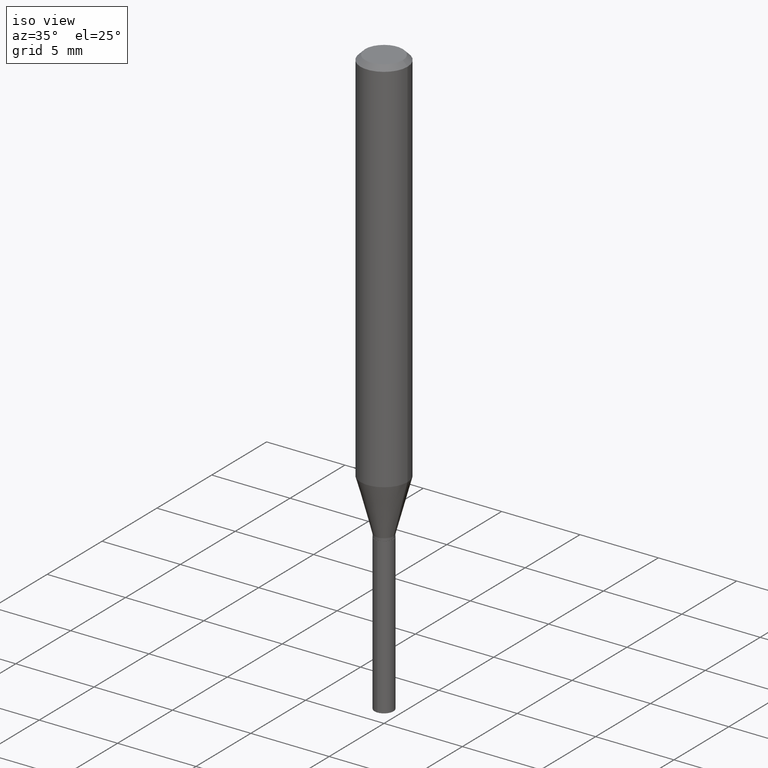
[diagram: clean part render]
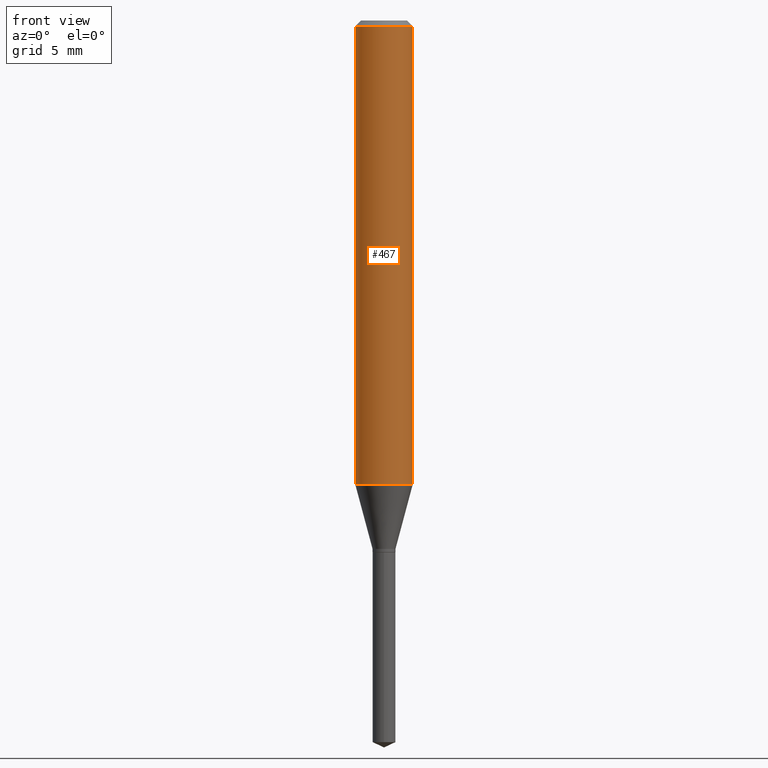
[diagram: tour spotlight — one face highlighted and labeled with its STEP entity id]
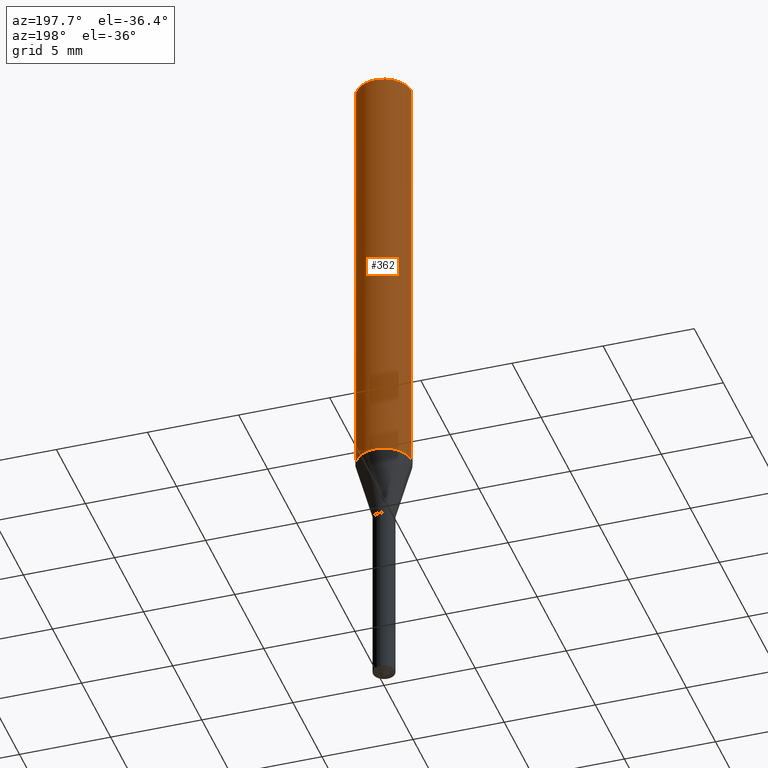
[diagram: tour spotlight — one face highlighted and labeled with its STEP entity id]
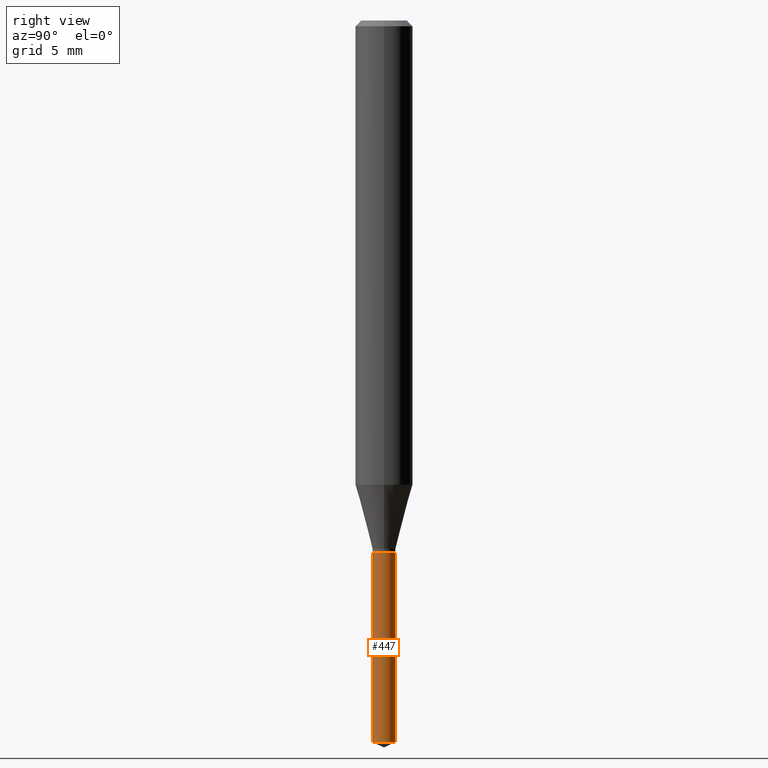
[diagram: tour spotlight — one face highlighted and labeled with its STEP entity id]
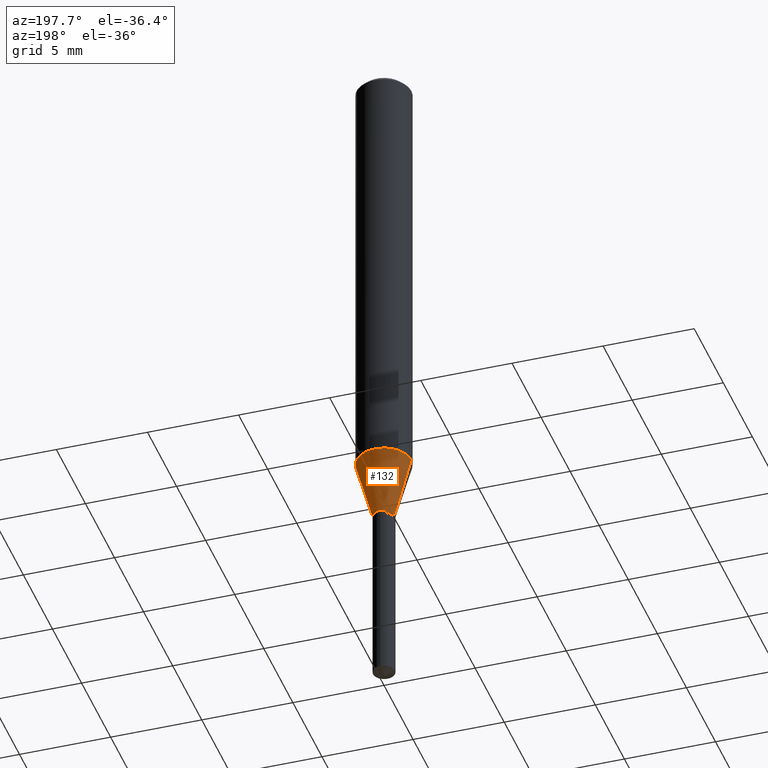
[diagram: tour spotlight — one face highlighted and labeled with its STEP entity id]
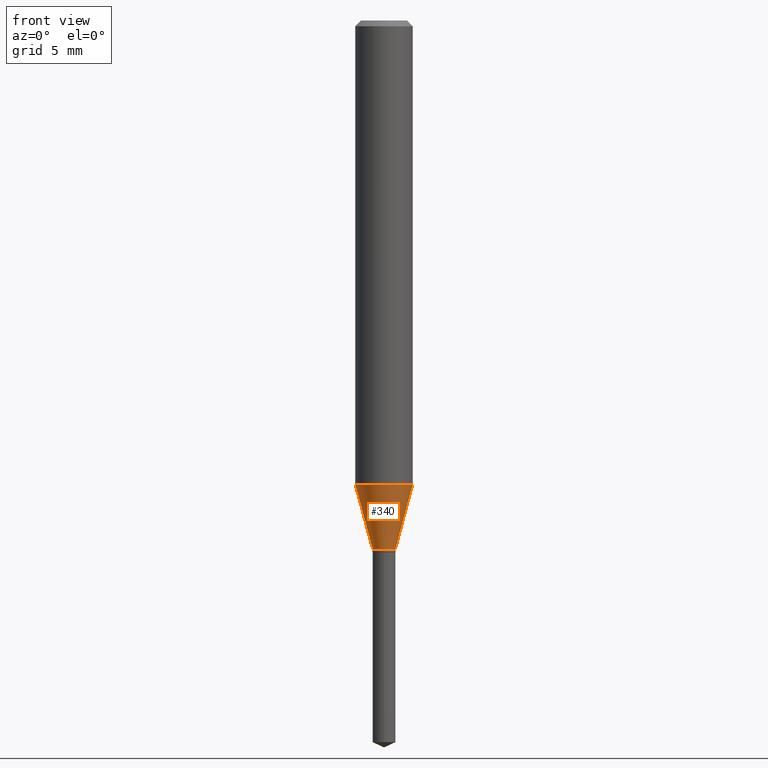
[diagram: tour spotlight — one face highlighted and labeled with its STEP entity id]
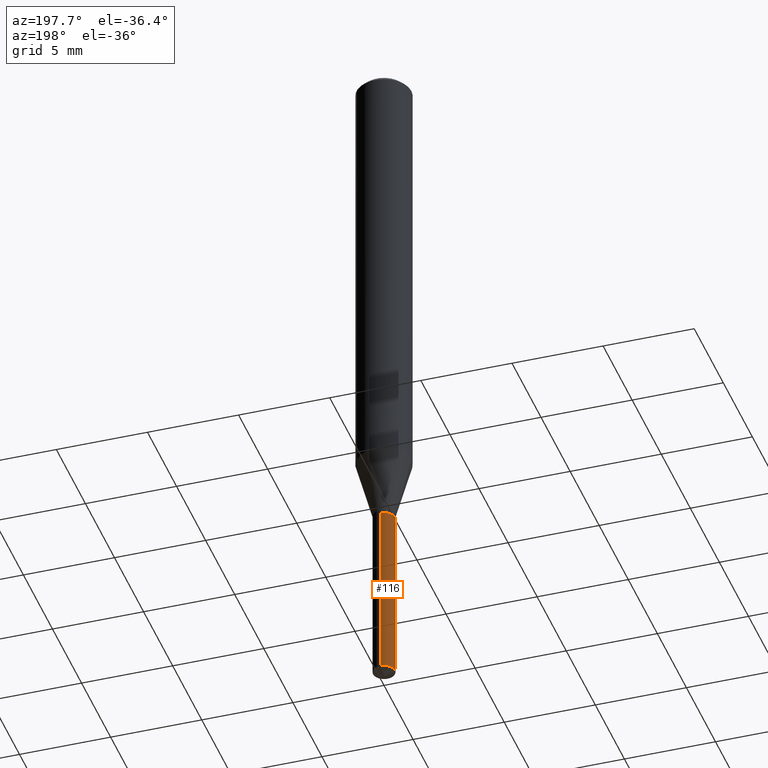
[diagram: tour spotlight — one face highlighted and labeled with its STEP entity id]
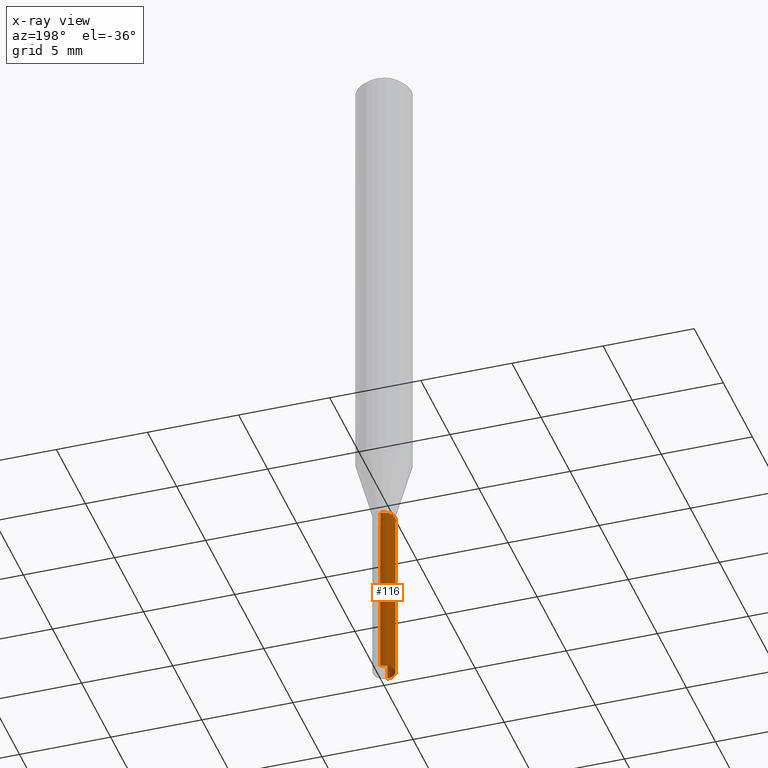
[diagram: x-ray of the same camera — body ghosted, this tour face saturated]
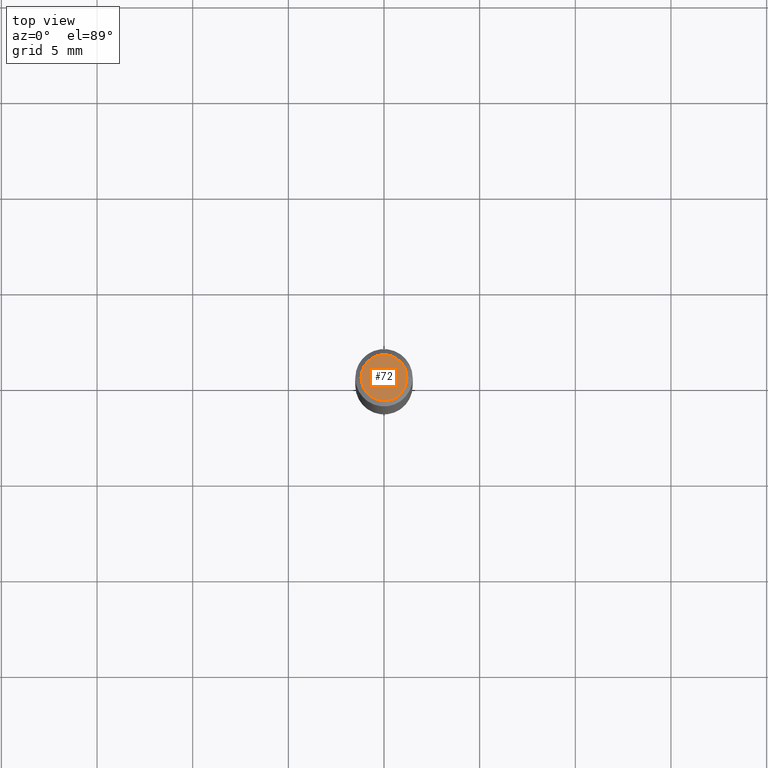
[diagram: tour spotlight — one face highlighted and labeled with its STEP entity id]
A machine part: a face-by-face anatomy tour. The part has 17 B-rep faces; the first image is the clean iso view, then the 7 largest visible faces are spotlighted one at a time (largest first), each with its STEP entity span.

Face 1 — front view, entity #467. In plain terms, the highlighted cylindrical surface (edge-blend (fillet) strip) has radius 1.4999 mm, axis along (-0, 0, 1).
Definition (entity closure, byte-faithful):
#2 = DIRECTION ( 'NONE',  ( 1.000000000000000000, -6.982962677686266711E-15, 4.876176775795935793E-29 ) ) ;
#23 = CARTESIAN_POINT ( 'NONE',  ( -0.05904999999999999832, -1.268396528345520737E-15, -0.01181000000000007738 ) ) ;
#30 = ORIENTED_EDGE ( 'NONE', *, *, #358, .T. ) ;
#44 = EDGE_CURVE ( 'NONE', #256, #261, #271, .T. ) ;
#69 = CARTESIAN_POINT ( 'NONE',  ( 0.000000000000000000, 0.000000000000000000, 0.000000000000000000 ) ) ;
#76 = DIRECTION ( 'NONE',  ( -2.445468806185136597E-29, 3.491481338843145583E-15, 1.000000000000000000 ) ) ;
#84 = CARTESIAN_POINT ( 'NONE',  ( 0.05905000000000013016, -3.747053579129358835E-15, -0.9550987988716831412 ) ) ;
#89 = AXIS2_PLACEMENT_3D ( 'NONE', #69, #76, #2 ) ;
#101 = LINE ( 'NONE', #257, #286 ) ;
#111 = CARTESIAN_POINT ( 'NONE',  ( -0.05905000000000006077, 4.195754854663395916E-16, -2.904631170795524694E-30 ) ) ;
#143 = VERTEX_POINT ( 'NONE', #84 ) ;
#159 = AXIS2_PLACEMENT_3D ( 'NONE', #260, #372, #445 ) ;
#176 = DIRECTION ( 'NONE',  ( -2.445468806185136597E-29, 3.491481338843145583E-15, 1.000000000000000000 ) ) ;
#177 = CIRCLE ( 'NONE', #159, 0.05905000000000011628 ) ;
#192 = FACE_OUTER_BOUND ( 'NONE', #402, .T. ) ;
#245 = CIRCLE ( 'NONE', #321, 0.05904999999999999832 ) ;
#253 = VECTOR ( 'NONE', #453, 39.37007874015748143 ) ;
#256 = VERTEX_POINT ( 'NONE', #316 ) ;
#257 = CARTESIAN_POINT ( 'NONE',  ( 0.05905000000000006077, -4.123439461173744764E-16, 2.879382386107503023E-30 ) ) ;
#260 = CARTESIAN_POINT ( 'NONE',  ( 2.335664319465593009E-29, -3.334709633011984309E-15, -0.9550987988716831412 ) ) ;
#261 = VERTEX_POINT ( 'NONE', #23 ) ;
#268 = CYLINDRICAL_SURFACE ( 'NONE', #89, 0.05905000000000006077 ) ;
#271 = LINE ( 'NONE', #111, #253 ) ;
#286 = VECTOR ( 'NONE', #482, 39.37007874015748143 ) ;
#316 = CARTESIAN_POINT ( 'NONE',  ( -0.05905000000000013016, -2.915134147545644027E-15, -0.9550987988716831412 ) ) ;
#321 = AXIS2_PLACEMENT_3D ( 'NONE', #333, #176, #434 ) ;
#328 = EDGE_CURVE ( 'NONE', #256, #143, #177, .T. ) ;
#333 = CARTESIAN_POINT ( 'NONE',  ( 2.888098660104665518E-31, -4.123439461173782112E-17, -0.01181000000000007738 ) ) ;
#334 = EDGE_CURVE ( 'NONE', #261, #444, #245, .T. ) ;
#349 = ORIENTED_EDGE ( 'NONE', *, *, #328, .T. ) ;
#358 = EDGE_CURVE ( 'NONE', #143, #444, #101, .T. ) ;
#367 = ORIENTED_EDGE ( 'NONE', *, *, #334, .F. ) ;
#372 = DIRECTION ( 'NONE',  ( -2.445468806185136597E-29, 3.491481338843145583E-15, 1.000000000000000000 ) ) ;
#402 = EDGE_LOOP ( 'NONE', ( #442, #349, #30, #367 ) ) ;
#434 = DIRECTION ( 'NONE',  ( 1.000000000000000000, -6.982962677686266711E-15, 0.000000000000000000 ) ) ;
#442 = ORIENTED_EDGE ( 'NONE', *, *, #44, .F. ) ;
#444 = VERTEX_POINT ( 'NONE', #457 ) ;
#445 = DIRECTION ( 'NONE',  ( 1.000000000000000000, -6.982962677686266711E-15, 0.000000000000000000 ) ) ;
#453 = DIRECTION ( 'NONE',  ( -2.445468806185136877E-29, 3.491481338843145188E-15, 1.000000000000000000 ) ) ;
#457 = CARTESIAN_POINT ( 'NONE',  ( 0.05904999999999999832, -4.535783407291118600E-16, -0.01181000000000007738 ) ) ;
#467 = ADVANCED_FACE ( 'NONE', ( #192 ), #268, .T. ) ;
#482 = DIRECTION ( 'NONE',  ( -2.445468806185136877E-29, 3.491481338843145188E-15, 1.000000000000000000 ) ) ;

Face 2 — auxiliary view, entity #362. In plain terms, the highlighted cylindrical surface (edge-blend (fillet) strip) has radius 1.4999 mm, axis along (-0, 0, 1).
Definition (entity closure, byte-faithful):
#14 = CIRCLE ( 'NONE', #194, 0.05904999999999999832 ) ;
#23 = CARTESIAN_POINT ( 'NONE',  ( -0.05904999999999999832, -1.268396528345520737E-15, -0.01181000000000007738 ) ) ;
#27 = FACE_OUTER_BOUND ( 'NONE', #420, .T. ) ;
#32 = DIRECTION ( 'NONE',  ( -2.445468806185136597E-29, 3.491481338843145583E-15, 1.000000000000000000 ) ) ;
#44 = EDGE_CURVE ( 'NONE', #256, #261, #271, .T. ) ;
#84 = CARTESIAN_POINT ( 'NONE',  ( 0.05905000000000013016, -3.747053579129358835E-15, -0.9550987988716831412 ) ) ;
#88 = DIRECTION ( 'NONE',  ( -2.445468806185136597E-29, 3.491481338843145583E-15, 1.000000000000000000 ) ) ;
#91 = CARTESIAN_POINT ( 'NONE',  ( 2.888098660104665518E-31, -4.123439461173782112E-17, -0.01181000000000007738 ) ) ;
#101 = LINE ( 'NONE', #257, #286 ) ;
#111 = CARTESIAN_POINT ( 'NONE',  ( -0.05905000000000006077, 4.195754854663395916E-16, -2.904631170795524694E-30 ) ) ;
#140 = DIRECTION ( 'NONE',  ( 1.000000000000000000, -6.982962677686266711E-15, 4.876176775795935793E-29 ) ) ;
#143 = VERTEX_POINT ( 'NONE', #84 ) ;
#165 = AXIS2_PLACEMENT_3D ( 'NONE', #403, #167, #140 ) ;
#167 = DIRECTION ( 'NONE',  ( -2.445468806185136597E-29, 3.491481338843145583E-15, 1.000000000000000000 ) ) ;
#194 = AXIS2_PLACEMENT_3D ( 'NONE', #91, #88, #351 ) ;
#221 = EDGE_CURVE ( 'NONE', #444, #261, #14, .T. ) ;
#222 = CYLINDRICAL_SURFACE ( 'NONE', #165, 0.05905000000000006077 ) ;
#227 = ORIENTED_EDGE ( 'NONE', *, *, #358, .F. ) ;
#236 = CIRCLE ( 'NONE', #417, 0.05905000000000011628 ) ;
#253 = VECTOR ( 'NONE', #453, 39.37007874015748143 ) ;
#256 = VERTEX_POINT ( 'NONE', #316 ) ;
#257 = CARTESIAN_POINT ( 'NONE',  ( 0.05905000000000006077, -4.123439461173744764E-16, 2.879382386107503023E-30 ) ) ;
#261 = VERTEX_POINT ( 'NONE', #23 ) ;
#263 = DIRECTION ( 'NONE',  ( 1.000000000000000000, -6.982962677686266711E-15, 0.000000000000000000 ) ) ;
#271 = LINE ( 'NONE', #111, #253 ) ;
#286 = VECTOR ( 'NONE', #482, 39.37007874015748143 ) ;
#292 = ORIENTED_EDGE ( 'NONE', *, *, #221, .F. ) ;
#316 = CARTESIAN_POINT ( 'NONE',  ( -0.05905000000000013016, -2.915134147545644027E-15, -0.9550987988716831412 ) ) ;
#351 = DIRECTION ( 'NONE',  ( 1.000000000000000000, -6.982962677686266711E-15, 0.000000000000000000 ) ) ;
#358 = EDGE_CURVE ( 'NONE', #143, #444, #101, .T. ) ;
#362 = ADVANCED_FACE ( 'NONE', ( #27 ), #222, .T. ) ;
#370 = CARTESIAN_POINT ( 'NONE',  ( 2.335664319465593009E-29, -3.334709633011984309E-15, -0.9550987988716831412 ) ) ;
#382 = EDGE_CURVE ( 'NONE', #143, #256, #236, .T. ) ;
#403 = CARTESIAN_POINT ( 'NONE',  ( 0.000000000000000000, 0.000000000000000000, 0.000000000000000000 ) ) ;
#417 = AXIS2_PLACEMENT_3D ( 'NONE', #370, #32, #263 ) ;
#418 = ORIENTED_EDGE ( 'NONE', *, *, #44, .T. ) ;
#420 = EDGE_LOOP ( 'NONE', ( #446, #418, #292, #227 ) ) ;
#444 = VERTEX_POINT ( 'NONE', #457 ) ;
#446 = ORIENTED_EDGE ( 'NONE', *, *, #382, .T. ) ;
#453 = DIRECTION ( 'NONE',  ( -2.445468806185136877E-29, 3.491481338843145188E-15, 1.000000000000000000 ) ) ;
#457 = CARTESIAN_POINT ( 'NONE',  ( 0.05904999999999999832, -4.535783407291118600E-16, -0.01181000000000007738 ) ) ;
#482 = DIRECTION ( 'NONE',  ( -2.445468806185136877E-29, 3.491481338843145188E-15, 1.000000000000000000 ) ) ;

Face 3 — right view, entity #447. In plain terms, the highlighted cylindrical surface (edge-blend (fillet) strip) has radius 0.5994 mm, axis along (-0, 0, 1).
Definition (entity closure, byte-faithful):
#12 = CARTESIAN_POINT ( 'NONE',  ( 1.676880856394200262E-16, 0.02359999999999617959, -1.094500000000000028 ) ) ;
#24 = CIRCLE ( 'NONE', #353, 0.02360000000000000292 ) ;
#29 = EDGE_LOOP ( 'NONE', ( #409, #406, #33, #259 ) ) ;
#33 = ORIENTED_EDGE ( 'NONE', *, *, #169, .F. ) ;
#34 = FACE_OUTER_BOUND ( 'NONE', #29, .T. ) ;
#39 = DIRECTION ( 'NONE',  ( -2.445470214571802396E-29, 3.491479321953280158E-15, 1.000000000000000000 ) ) ;
#49 = VERTEX_POINT ( 'NONE', #12 ) ;
#51 = LINE ( 'NONE', #354, #166 ) ;
#75 = DIRECTION ( 'NONE',  ( -6.982962677686265133E-15, -1.000000000000000000, 0.000000000000000000 ) ) ;
#93 = EDGE_CURVE ( 'NONE', #329, #488, #24, .T. ) ;
#125 = CARTESIAN_POINT ( 'NONE',  ( -1.647979191933691307E-16, -0.02360000000000382278, -1.094499999999999806 ) ) ;
#127 = CIRCLE ( 'NONE', #471, 0.02360000000000000292 ) ;
#129 = EDGE_CURVE ( 'NONE', #329, #180, #51, .T. ) ;
#130 = CARTESIAN_POINT ( 'NONE',  ( -1.647979191933595904E-16, -0.02360000000000518627, -1.485095139267541997 ) ) ;
#139 = VECTOR ( 'NONE', #39, 39.37007874015748143 ) ;
#160 = AXIS2_PLACEMENT_3D ( 'NONE', #276, #232, #413 ) ;
#166 = VECTOR ( 'NONE', #352, 39.37007874015748143 ) ;
#169 = EDGE_CURVE ( 'NONE', #180, #49, #127, .T. ) ;
#180 = VERTEX_POINT ( 'NONE', #125 ) ;
#232 = DIRECTION ( 'NONE',  ( -2.445470214571802116E-29, 3.491479321953280158E-15, 1.000000000000000000 ) ) ;
#259 = ORIENTED_EDGE ( 'NONE', *, *, #129, .F. ) ;
#273 = DIRECTION ( 'NONE',  ( -2.445470214571802116E-29, 3.491479321953280158E-15, 1.000000000000000000 ) ) ;
#276 = CARTESIAN_POINT ( 'NONE',  ( 2.676565608369631794E-29, -3.821426325363822773E-15, -1.094499999999999806 ) ) ;
#284 = DIRECTION ( 'NONE',  ( -6.982962677686265133E-15, -1.000000000000000000, 5.787813545898861862E-15 ) ) ;
#308 = CARTESIAN_POINT ( 'NONE',  ( 3.631754387404930906E-29, -5.185181177371907688E-15, -1.485095139267541997 ) ) ;
#313 = DIRECTION ( 'NONE',  ( -2.445470214571802116E-29, 3.491479321953280158E-15, 1.000000000000000000 ) ) ;
#329 = VERTEX_POINT ( 'NONE', #130 ) ;
#352 = DIRECTION ( 'NONE',  ( -2.445470214571802396E-29, 3.491479321953280158E-15, 1.000000000000000000 ) ) ;
#353 = AXIS2_PLACEMENT_3D ( 'NONE', #308, #273, #75 ) ;
#354 = CARTESIAN_POINT ( 'NONE',  ( -1.647979191933691307E-16, -0.02360000000000382278, -1.094499999999999806 ) ) ;
#392 = CARTESIAN_POINT ( 'NONE',  ( 2.676565608369631794E-29, -3.821426325363822773E-15, -1.094499999999999806 ) ) ;
#397 = EDGE_CURVE ( 'NONE', #488, #49, #454, .T. ) ;
#406 = ORIENTED_EDGE ( 'NONE', *, *, #397, .T. ) ;
#409 = ORIENTED_EDGE ( 'NONE', *, *, #93, .T. ) ;
#411 = CYLINDRICAL_SURFACE ( 'NONE', #160, 0.02360000000000000292 ) ;
#413 = DIRECTION ( 'NONE',  ( -6.982962677686265133E-15, -1.000000000000000000, 5.787813545898861862E-15 ) ) ;
#421 = CARTESIAN_POINT ( 'NONE',  ( 1.676880856394199276E-16, 0.02359999999999481610, -1.485095139267541997 ) ) ;
#447 = ADVANCED_FACE ( 'NONE', ( #34 ), #411, .T. ) ;
#451 = CARTESIAN_POINT ( 'NONE',  ( 1.676880856394103626E-16, 0.02359999999999617959, -1.094500000000000028 ) ) ;
#454 = LINE ( 'NONE', #451, #139 ) ;
#471 = AXIS2_PLACEMENT_3D ( 'NONE', #392, #313, #284 ) ;
#488 = VERTEX_POINT ( 'NONE', #421 ) ;

Face 4 — auxiliary view, entity #132. In plain terms, the highlighted conical surface has half-angle 15 deg.
Definition (entity closure, byte-faithful):
#11 = DIRECTION ( 'NONE',  ( -2.445468806185136597E-29, 3.491481338843145583E-15, 1.000000000000000000 ) ) ;
#17 = DIRECTION ( 'NONE',  ( -2.445468806185136597E-29, 3.491481338843145583E-15, 1.000000000000000000 ) ) ;
#32 = DIRECTION ( 'NONE',  ( -2.445468806185136597E-29, 3.491481338843145583E-15, 1.000000000000000000 ) ) ;
#37 = ORIENTED_EDGE ( 'NONE', *, *, #103, .F. ) ;
#43 = CARTESIAN_POINT ( 'NONE',  ( 0.02360000000000000292, -3.961434727051432093E-15, -1.087399999999999922 ) ) ;
#52 = VECTOR ( 'NONE', #364, 39.37007874015747433 ) ;
#65 = VECTOR ( 'NONE', #191, 39.37007874015747433 ) ;
#73 = CIRCLE ( 'NONE', #274, 0.02360000000000000292 ) ;
#82 = EDGE_CURVE ( 'NONE', #363, #404, #73, .T. ) ;
#84 = CARTESIAN_POINT ( 'NONE',  ( 0.05905000000000013016, -3.747053579129358835E-15, -0.9550987988716831412 ) ) ;
#94 = ORIENTED_EDGE ( 'NONE', *, *, #82, .T. ) ;
#103 = EDGE_CURVE ( 'NONE', #363, #143, #381, .T. ) ;
#132 = ADVANCED_FACE ( 'NONE', ( #357 ), #438, .T. ) ;
#143 = VERTEX_POINT ( 'NONE', #84 ) ;
#149 = ORIENTED_EDGE ( 'NONE', *, *, #382, .F. ) ;
#191 = DIRECTION ( 'NONE',  ( 0.2588190451025213501, 1.565188264969621968E-15, 0.9659258262890682012 ) ) ;
#212 = EDGE_LOOP ( 'NONE', ( #94, #296, #149, #37 ) ) ;
#217 = CARTESIAN_POINT ( 'NONE',  ( 0.02360000000000000292, -3.961434727051432093E-15, -1.087399999999999922 ) ) ;
#231 = DIRECTION ( 'NONE',  ( 1.000000000000000000, -6.982962677686258033E-15, 0.000000000000000000 ) ) ;
#236 = CIRCLE ( 'NONE', #417, 0.05905000000000011628 ) ;
#256 = VERTEX_POINT ( 'NONE', #316 ) ;
#263 = DIRECTION ( 'NONE',  ( 1.000000000000000000, -6.982962677686266711E-15, 0.000000000000000000 ) ) ;
#272 = CARTESIAN_POINT ( 'NONE',  ( -0.02360000000000000292, -3.640470610636835238E-15, -1.087399999999999922 ) ) ;
#274 = AXIS2_PLACEMENT_3D ( 'NONE', #345, #11, #231 ) ;
#288 = DIRECTION ( 'NONE',  ( 1.000000000000000000, -6.982962677686258033E-15, 0.000000000000000000 ) ) ;
#289 = CARTESIAN_POINT ( 'NONE',  ( -0.02360000000000000292, -3.628948722218652525E-15, -1.087399999999999922 ) ) ;
#296 = ORIENTED_EDGE ( 'NONE', *, *, #311, .T. ) ;
#311 = EDGE_CURVE ( 'NONE', #404, #256, #405, .T. ) ;
#316 = CARTESIAN_POINT ( 'NONE',  ( -0.05905000000000013016, -2.915134147545644027E-15, -0.9550987988716831412 ) ) ;
#330 = AXIS2_PLACEMENT_3D ( 'NONE', #424, #17, #288 ) ;
#345 = CARTESIAN_POINT ( 'NONE',  ( 2.659202779845717713E-29, -3.796636807858036634E-15, -1.087399999999999922 ) ) ;
#357 = FACE_OUTER_BOUND ( 'NONE', #212, .T. ) ;
#363 = VERTEX_POINT ( 'NONE', #217 ) ;
#364 = DIRECTION ( 'NONE',  ( -0.2588190451025213501, 5.211531920934551042E-15, 0.9659258262890682012 ) ) ;
#370 = CARTESIAN_POINT ( 'NONE',  ( 2.335664319465593009E-29, -3.334709633011984309E-15, -0.9550987988716831412 ) ) ;
#381 = LINE ( 'NONE', #43, #65 ) ;
#382 = EDGE_CURVE ( 'NONE', #143, #256, #236, .T. ) ;
#404 = VERTEX_POINT ( 'NONE', #272 ) ;
#405 = LINE ( 'NONE', #289, #52 ) ;
#417 = AXIS2_PLACEMENT_3D ( 'NONE', #370, #32, #263 ) ;
#424 = CARTESIAN_POINT ( 'NONE',  ( 2.659202779845717713E-29, -3.796636807858036634E-15, -1.087399999999999922 ) ) ;
#438 = CONICAL_SURFACE ( 'NONE', #330, 0.02360000000000000292, 0.2617993877991500740 ) ;

Face 5 — front view, entity #340. In plain terms, the highlighted conical surface has half-angle 15 deg.
Definition (entity closure, byte-faithful):
#43 = CARTESIAN_POINT ( 'NONE',  ( 0.02360000000000000292, -3.961434727051432093E-15, -1.087399999999999922 ) ) ;
#52 = VECTOR ( 'NONE', #364, 39.37007874015747433 ) ;
#65 = VECTOR ( 'NONE', #191, 39.37007874015747433 ) ;
#81 = CIRCLE ( 'NONE', #152, 0.02360000000000000292 ) ;
#84 = CARTESIAN_POINT ( 'NONE',  ( 0.05905000000000013016, -3.747053579129358835E-15, -0.9550987988716831412 ) ) ;
#103 = EDGE_CURVE ( 'NONE', #363, #143, #381, .T. ) ;
#106 = FACE_OUTER_BOUND ( 'NONE', #414, .T. ) ;
#112 = ORIENTED_EDGE ( 'NONE', *, *, #103, .T. ) ;
#121 = CONICAL_SURFACE ( 'NONE', #456, 0.02360000000000000292, 0.2617993877991500740 ) ;
#134 = ORIENTED_EDGE ( 'NONE', *, *, #328, .F. ) ;
#143 = VERTEX_POINT ( 'NONE', #84 ) ;
#152 = AXIS2_PLACEMENT_3D ( 'NONE', #241, #428, #394 ) ;
#159 = AXIS2_PLACEMENT_3D ( 'NONE', #260, #372, #445 ) ;
#177 = CIRCLE ( 'NONE', #159, 0.05905000000000011628 ) ;
#183 = EDGE_CURVE ( 'NONE', #404, #363, #81, .T. ) ;
#191 = DIRECTION ( 'NONE',  ( 0.2588190451025213501, 1.565188264969621968E-15, 0.9659258262890682012 ) ) ;
#211 = ORIENTED_EDGE ( 'NONE', *, *, #311, .F. ) ;
#214 = CARTESIAN_POINT ( 'NONE',  ( 2.659202779845717713E-29, -3.796636807858036634E-15, -1.087399999999999922 ) ) ;
#217 = CARTESIAN_POINT ( 'NONE',  ( 0.02360000000000000292, -3.961434727051432093E-15, -1.087399999999999922 ) ) ;
#241 = CARTESIAN_POINT ( 'NONE',  ( 2.659202779845717713E-29, -3.796636807858036634E-15, -1.087399999999999922 ) ) ;
#250 = DIRECTION ( 'NONE',  ( -2.445468806185136597E-29, 3.491481338843145583E-15, 1.000000000000000000 ) ) ;
#256 = VERTEX_POINT ( 'NONE', #316 ) ;
#260 = CARTESIAN_POINT ( 'NONE',  ( 2.335664319465593009E-29, -3.334709633011984309E-15, -0.9550987988716831412 ) ) ;
#272 = CARTESIAN_POINT ( 'NONE',  ( -0.02360000000000000292, -3.640470610636835238E-15, -1.087399999999999922 ) ) ;
#275 = ORIENTED_EDGE ( 'NONE', *, *, #183, .T. ) ;
#289 = CARTESIAN_POINT ( 'NONE',  ( -0.02360000000000000292, -3.628948722218652525E-15, -1.087399999999999922 ) ) ;
#311 = EDGE_CURVE ( 'NONE', #404, #256, #405, .T. ) ;
#316 = CARTESIAN_POINT ( 'NONE',  ( -0.05905000000000013016, -2.915134147545644027E-15, -0.9550987988716831412 ) ) ;
#328 = EDGE_CURVE ( 'NONE', #256, #143, #177, .T. ) ;
#340 = ADVANCED_FACE ( 'NONE', ( #106 ), #121, .T. ) ;
#363 = VERTEX_POINT ( 'NONE', #217 ) ;
#364 = DIRECTION ( 'NONE',  ( -0.2588190451025213501, 5.211531920934551042E-15, 0.9659258262890682012 ) ) ;
#372 = DIRECTION ( 'NONE',  ( -2.445468806185136597E-29, 3.491481338843145583E-15, 1.000000000000000000 ) ) ;
#381 = LINE ( 'NONE', #43, #65 ) ;
#394 = DIRECTION ( 'NONE',  ( 1.000000000000000000, -6.982962677686258033E-15, 0.000000000000000000 ) ) ;
#398 = DIRECTION ( 'NONE',  ( 1.000000000000000000, -6.982962677686258033E-15, 0.000000000000000000 ) ) ;
#404 = VERTEX_POINT ( 'NONE', #272 ) ;
#405 = LINE ( 'NONE', #289, #52 ) ;
#414 = EDGE_LOOP ( 'NONE', ( #211, #275, #112, #134 ) ) ;
#428 = DIRECTION ( 'NONE',  ( -2.445468806185136597E-29, 3.491481338843145583E-15, 1.000000000000000000 ) ) ;
#445 = DIRECTION ( 'NONE',  ( 1.000000000000000000, -6.982962677686266711E-15, 0.000000000000000000 ) ) ;
#456 = AXIS2_PLACEMENT_3D ( 'NONE', #214, #250, #398 ) ;

Face 6 — auxiliary view, entity #116. An x-ray twin of the same camera follows (body ghosted, this face saturated) — the face is partly hidden behind the body. In plain terms, the highlighted cylindrical surface (edge-blend (fillet) strip) has radius 0.5994 mm, axis along (-0, 0, 1).
Definition (entity closure, byte-faithful):
#8 = CIRCLE ( 'NONE', #490, 0.02360000000000000292 ) ;
#12 = CARTESIAN_POINT ( 'NONE',  ( 1.676880856394200262E-16, 0.02359999999999617959, -1.094500000000000028 ) ) ;
#13 = DIRECTION ( 'NONE',  ( -6.982962677686265133E-15, -1.000000000000000000, 0.000000000000000000 ) ) ;
#39 = DIRECTION ( 'NONE',  ( -2.445470214571802396E-29, 3.491479321953280158E-15, 1.000000000000000000 ) ) ;
#49 = VERTEX_POINT ( 'NONE', #12 ) ;
#51 = LINE ( 'NONE', #354, #166 ) ;
#63 = DIRECTION ( 'NONE',  ( -2.445470214571802116E-29, 3.491479321953280158E-15, 1.000000000000000000 ) ) ;
#86 = DIRECTION ( 'NONE',  ( -2.445470214571802116E-29, 3.491479321953280158E-15, 1.000000000000000000 ) ) ;
#105 = ORIENTED_EDGE ( 'NONE', *, *, #297, .F. ) ;
#114 = CIRCLE ( 'NONE', #449, 0.02360000000000000292 ) ;
#116 = ADVANCED_FACE ( 'NONE', ( #196 ), #118, .T. ) ;
#118 = CYLINDRICAL_SURFACE ( 'NONE', #346, 0.02360000000000000292 ) ;
#125 = CARTESIAN_POINT ( 'NONE',  ( -1.647979191933691307E-16, -0.02360000000000382278, -1.094499999999999806 ) ) ;
#129 = EDGE_CURVE ( 'NONE', #329, #180, #51, .T. ) ;
#130 = CARTESIAN_POINT ( 'NONE',  ( -1.647979191933595904E-16, -0.02360000000000518627, -1.485095139267541997 ) ) ;
#133 = DIRECTION ( 'NONE',  ( -6.982962677686265133E-15, -1.000000000000000000, 5.787813545898861862E-15 ) ) ;
#139 = VECTOR ( 'NONE', #39, 39.37007874015748143 ) ;
#151 = DIRECTION ( 'NONE',  ( -2.445470214571802116E-29, 3.491479321953280158E-15, 1.000000000000000000 ) ) ;
#166 = VECTOR ( 'NONE', #352, 39.37007874015748143 ) ;
#178 = ORIENTED_EDGE ( 'NONE', *, *, #199, .T. ) ;
#179 = CARTESIAN_POINT ( 'NONE',  ( 2.676565608369631794E-29, -3.821426325363822773E-15, -1.094499999999999806 ) ) ;
#180 = VERTEX_POINT ( 'NONE', #125 ) ;
#185 = ORIENTED_EDGE ( 'NONE', *, *, #397, .F. ) ;
#196 = FACE_OUTER_BOUND ( 'NONE', #332, .T. ) ;
#199 = EDGE_CURVE ( 'NONE', #488, #329, #114, .T. ) ;
#297 = EDGE_CURVE ( 'NONE', #49, #180, #8, .T. ) ;
#310 = CARTESIAN_POINT ( 'NONE',  ( 2.676565608369631794E-29, -3.821426325363822773E-15, -1.094499999999999806 ) ) ;
#329 = VERTEX_POINT ( 'NONE', #130 ) ;
#332 = EDGE_LOOP ( 'NONE', ( #185, #178, #437, #105 ) ) ;
#346 = AXIS2_PLACEMENT_3D ( 'NONE', #310, #151, #458 ) ;
#352 = DIRECTION ( 'NONE',  ( -2.445470214571802396E-29, 3.491479321953280158E-15, 1.000000000000000000 ) ) ;
#354 = CARTESIAN_POINT ( 'NONE',  ( -1.647979191933691307E-16, -0.02360000000000382278, -1.094499999999999806 ) ) ;
#389 = CARTESIAN_POINT ( 'NONE',  ( 3.631754387404930906E-29, -5.185181177371907688E-15, -1.485095139267541997 ) ) ;
#397 = EDGE_CURVE ( 'NONE', #488, #49, #454, .T. ) ;
#421 = CARTESIAN_POINT ( 'NONE',  ( 1.676880856394199276E-16, 0.02359999999999481610, -1.485095139267541997 ) ) ;
#437 = ORIENTED_EDGE ( 'NONE', *, *, #129, .T. ) ;
#449 = AXIS2_PLACEMENT_3D ( 'NONE', #389, #86, #13 ) ;
#451 = CARTESIAN_POINT ( 'NONE',  ( 1.676880856394103626E-16, 0.02359999999999617959, -1.094500000000000028 ) ) ;
#454 = LINE ( 'NONE', #451, #139 ) ;
#458 = DIRECTION ( 'NONE',  ( -6.982962677686265133E-15, -1.000000000000000000, 5.787813545898861862E-15 ) ) ;
#488 = VERTEX_POINT ( 'NONE', #421 ) ;
#490 = AXIS2_PLACEMENT_3D ( 'NONE', #179, #63, #133 ) ;

Face 7 — top view, entity #72. In plain terms, the highlighted planar face has unit normal (0, -0, -1).
Definition (entity closure, byte-faithful):
#5 = CARTESIAN_POINT ( 'NONE',  ( 4.132873053354867254E-48, -5.900647395337818946E-34, -1.690012582823346072E-19 ) ) ;
#40 = DIRECTION ( 'NONE',  ( -1.000000000000000000, 6.982962677686265922E-15, -4.876176775795935793E-29 ) ) ;
#55 = CARTESIAN_POINT ( 'NONE',  ( 8.265746106709734507E-48, -1.180129479067563789E-33, -3.380025165646692144E-19 ) ) ;
#57 = CIRCLE ( 'NONE', #479, 0.04724000000000000421 ) ;
#70 = DIRECTION ( 'NONE',  ( 2.438088387897960049E-29, -3.491481338843145188E-15, -1.000000000000000000 ) ) ;
#72 = ADVANCED_FACE ( 'NONE', ( #383 ), #155, .F. ) ;
#155 = PLANE ( 'NONE',  #377 ) ;
#157 = DIRECTION ( 'NONE',  ( -2.445468806185136597E-29, 3.491481338843145583E-15, 1.000000000000000000 ) ) ;
#182 = EDGE_LOOP ( 'NONE', ( #335, #298 ) ) ;
#204 = DIRECTION ( 'NONE',  ( 1.000000000000000000, -6.982962677686266711E-15, 4.876185090822587894E-29 ) ) ;
#210 = CARTESIAN_POINT ( 'NONE',  ( 8.265746106709734507E-48, -1.180129479067563789E-33, -3.380025165646692144E-19 ) ) ;
#216 = EDGE_CURVE ( 'NONE', #294, #485, #407, .T. ) ;
#228 = AXIS2_PLACEMENT_3D ( 'NONE', #55, #157, #204 ) ;
#294 = VERTEX_POINT ( 'NONE', #361 ) ;
#298 = ORIENTED_EDGE ( 'NONE', *, *, #304, .T. ) ;
#304 = EDGE_CURVE ( 'NONE', #485, #294, #57, .T. ) ;
#309 = CARTESIAN_POINT ( 'NONE',  ( 0.04724000000000000421, -3.852183633974369838E-16, -3.380025165621689721E-19 ) ) ;
#322 = DIRECTION ( 'NONE',  ( -2.445468806185136597E-29, 3.491481338843145583E-15, 1.000000000000000000 ) ) ;
#335 = ORIENTED_EDGE ( 'NONE', *, *, #216, .T. ) ;
#361 = CARTESIAN_POINT ( 'NONE',  ( -0.04724000000000000421, 3.504923541997677355E-16, -3.380025165670481712E-19 ) ) ;
#377 = AXIS2_PLACEMENT_3D ( 'NONE', #5, #70, #40 ) ;
#383 = FACE_OUTER_BOUND ( 'NONE', #182, .T. ) ;
#407 = CIRCLE ( 'NONE', #228, 0.04724000000000000421 ) ;
#472 = DIRECTION ( 'NONE',  ( 1.000000000000000000, -6.982962677686266711E-15, 4.876185090822587894E-29 ) ) ;
#479 = AXIS2_PLACEMENT_3D ( 'NONE', #210, #322, #472 ) ;
#485 = VERTEX_POINT ( 'NONE', #309 ) ;